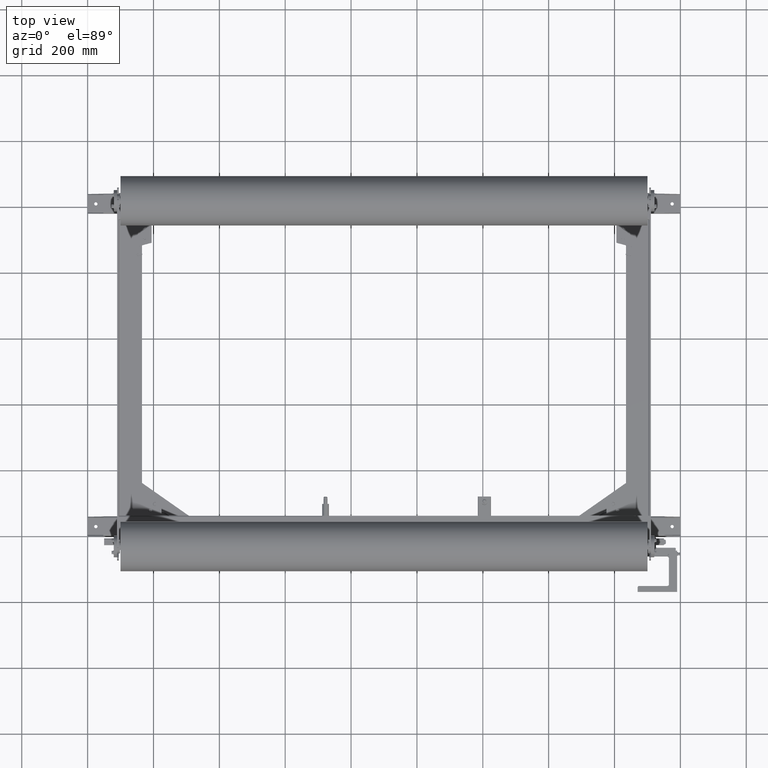
[diagram: clean part render]
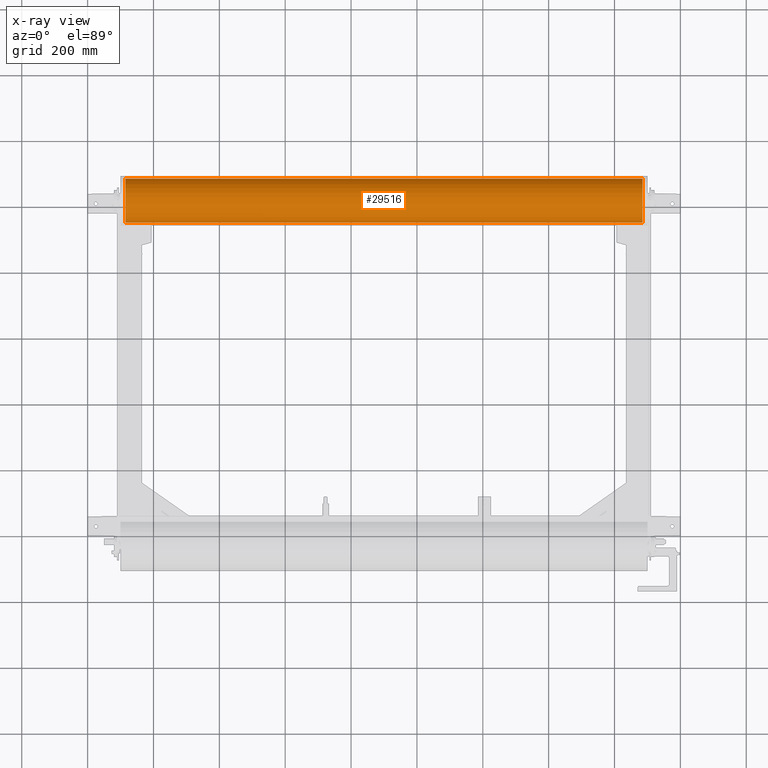
[diagram: x-ray — body ghosted, one internal face saturated and labeled with its STEP entity id]
A machine part, top view, then the same camera in x-ray: the body is ghosted and one INTERNAL B-rep face — a face not visible from any outside direction — is saturated and labeled: STEP entity #29516.
In plain terms, the highlighted cylindrical surface (edge-blend (fillet) strip) has radius 67 mm, axis along (1, -0, 0).
Its self-contained STEP definition (entity closure, byte-faithful):
#29475=CARTESIAN_POINT('',(499.999999999999940,-35.999999999999915,0.0));
#29476=DIRECTION('',(1.0,0.0,0.0));
#29477=DIRECTION('',(0.0,1.0,0.0));
#29478=AXIS2_PLACEMENT_3D('',#29475,#29476,#29477);
#29479=CYLINDRICAL_SURFACE('',#29478,66.999999999999915);
#29480=CARTESIAN_POINT('',(1285.0,31.000000000000085,0.0));
#29481=VERTEX_POINT('',#29480);
#29482=CARTESIAN_POINT('',(-285.000000000000110,30.999999999999915,0.0));
#29483=VERTEX_POINT('',#29482);
#29484=CARTESIAN_POINT('',(1285.0,31.000000000000085,0.0));
#29485=DIRECTION('',(-1.0,0.0,0.0));
#29486=VECTOR('',#29485,1570.0);
#29487=LINE('',#29484,#29486);
#29488=EDGE_CURVE('',#29481,#29483,#29487,.T.);
#29489=ORIENTED_EDGE('',*,*,#29488,.F.);
#29490=CARTESIAN_POINT('',(1285.0,-102.999999999999830,-8.205134E-015));
#29491=VERTEX_POINT('',#29490);
#29492=CARTESIAN_POINT('',(1285.0,-35.999999999999915,0.0));
#29493=DIRECTION('',(1.0,0.0,0.0));
#29494=DIRECTION('',(0.0,1.0,0.0));
#29495=AXIS2_PLACEMENT_3D('',#29492,#29493,#29494);
#29496=CIRCLE('',#29495,67.0);
#29497=EDGE_CURVE('',#29481,#29491,#29496,.T.);
#29498=ORIENTED_EDGE('',*,*,#29497,.T.);
#29499=CARTESIAN_POINT('',(-285.000000000000060,-102.999999999999830,-8.205134E-015));
#29500=VERTEX_POINT('',#29499);
#29501=CARTESIAN_POINT('',(1285.0,-102.999999999999830,-8.205134E-015));
#29502=DIRECTION('',(-1.0,0.0,0.0));
#29503=VECTOR('',#29502,1570.0);
#29504=LINE('',#29501,#29503);
#29505=EDGE_CURVE('',#29491,#29500,#29504,.T.);
#29506=ORIENTED_EDGE('',*,*,#29505,.T.);
#29507=CARTESIAN_POINT('',(-285.000000000000110,-35.999999999999915,0.0));
#29508=DIRECTION('',(1.0,0.0,0.0));
#29509=DIRECTION('',(0.0,1.0,0.0));
#29510=AXIS2_PLACEMENT_3D('',#29507,#29508,#29509);
#29511=CIRCLE('',#29510,66.999999999999829);
#29512=EDGE_CURVE('',#29483,#29500,#29511,.T.);
#29513=ORIENTED_EDGE('',*,*,#29512,.F.);
#29514=EDGE_LOOP('',(#29489,#29498,#29506,#29513));
#29515=FACE_OUTER_BOUND('',#29514,.T.);
#29516=ADVANCED_FACE('',(#29515),#29479,.F.);